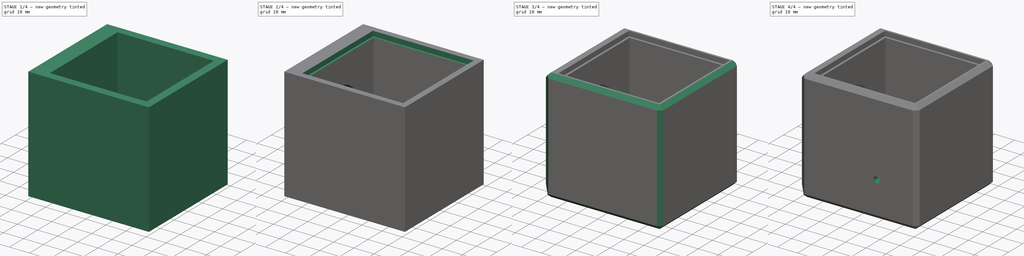
[diagram: build sequence overview — one tinted view per stage of 4, left to right]
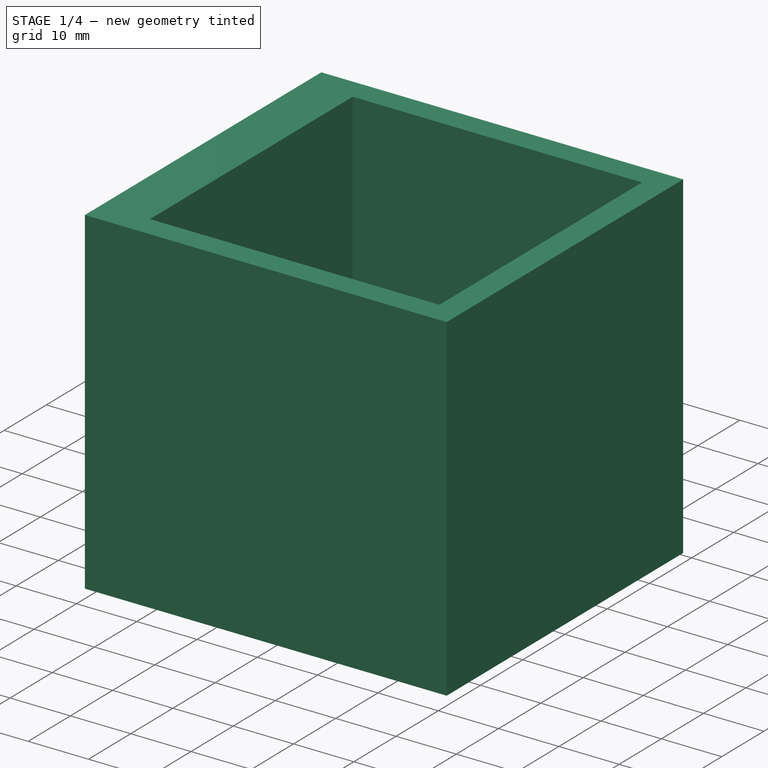
[diagram: stage 1 of 4 — iso view after this stage's code; geometry added in this stage tinted green]
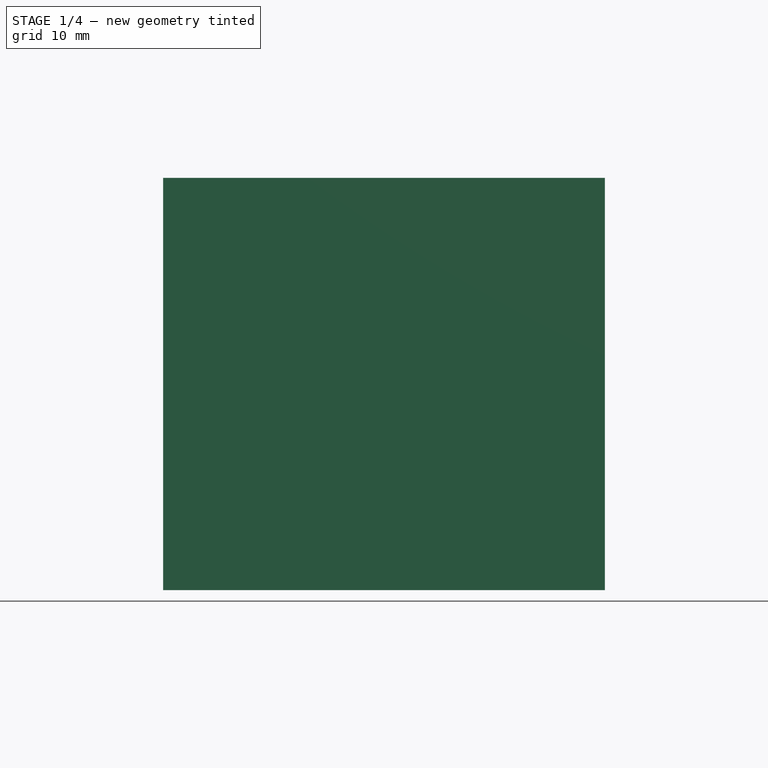
[diagram: stage 1 of 4 — front view after this stage's code; geometry added in this stage tinted green]
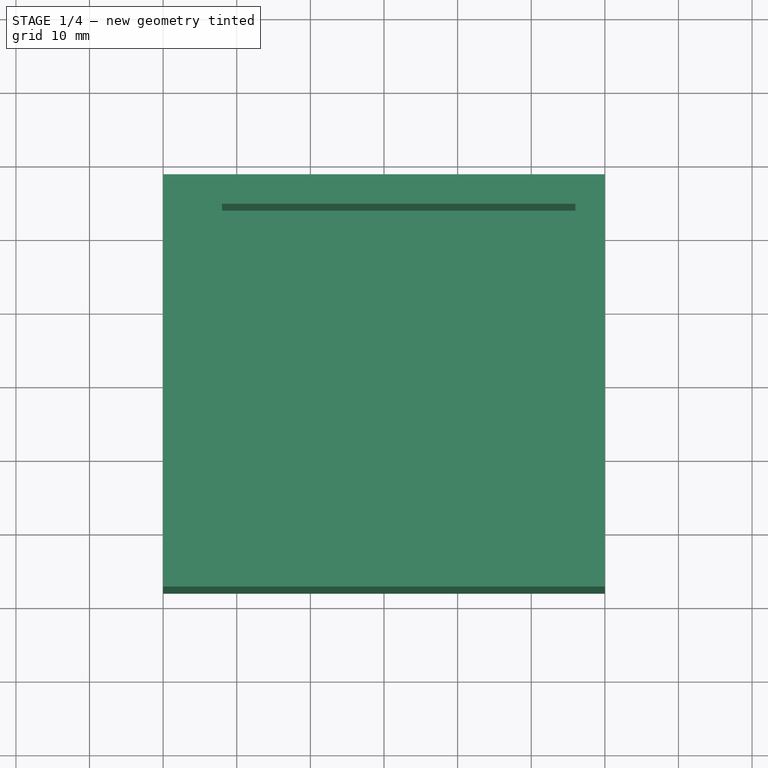
[diagram: stage 1 of 4 — top view after this stage's code; geometry added in this stage tinted green]
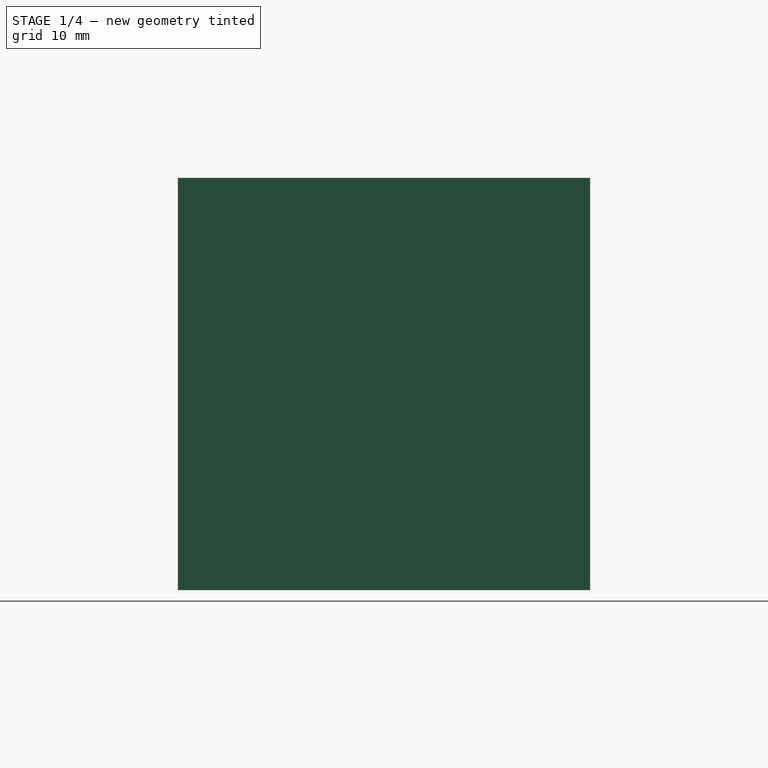
[diagram: stage 1 of 4 — right view after this stage's code; geometry added in this stage tinted green]
FCSTD DOCUMENT  (FreeCAD 1.0R39109 (Git))
Label: Waist Viewer Standard
License: All rights reserved
LicenseURL: https://en.wikipedia.org/wiki/All_rights_reserved
objects: Sketcher::SketchObject×7, PartDesign::Pocket×5, PartDesign::Chamfer×2, PartDesign::Pad×1, PartDesign::Plane×1, PartDesign::Line×1, PartDesign::AdditiveHelix×1, PartDesign::Body×1
note: 44 computed .brp shape members not serialized (recipe doc carries the construction recipe); baked Part::Feature solids carry a one-line shape summary decoded from their .brp

FEATURE [Sketcher::SketchObject] Sketch
  ArcFitTolerance = 1e-06
  AttachmentSupport = -> [XY_Plane]
  FullyConstrained = true
  MakeInternals = false
  MapMode = 5
  sketch-geometry (5):
    g0: LineSegment StartX=-30 StartY=-28 StartZ=0 EndX=30 EndY=-28 EndZ=0
    g1: LineSegment StartX=30 StartY=-28 StartZ=0 EndX=30 EndY=28 EndZ=0
    g2: LineSegment StartX=30 StartY=28 StartZ=0 EndX=-30 EndY=28 EndZ=0
    g3: LineSegment StartX=-30 StartY=28 StartZ=0 EndX=-30 EndY=-28 EndZ=0
    g4: GeomPoint [constr] X=0 Y=0 Z=0
  constraints (12):
    c: Coincident(g0,g1)
    c: Coincident(g1,g2)
    c: Coincident(g2,g3)
    c: Coincident(g3,g0)
    c: Horizontal(g0)
    c: Horizontal(g2)
    c: Vertical(g1)
    c: Vertical(g3)
    c: Symmetric(g2,g0,g4)
    c: Distance(g1,g3) = 60
    c: Distance(g0,g2) = 56
    c: Coincident(g4,g-1)
FEATURE [PartDesign::Pad] Pad
  Direction = (0,0,1)
  Length = 56
  Length2 = 10
  Profile = -> Sketch
  ReferenceAxis = -> Sketch [N_Axis]
  Refine = true
  Suppressed = false
  Type = 0
FEATURE [Sketcher::SketchObject] Sketch001
  ArcFitTolerance = 1e-06
  AttachmentSupport = -> [Pad]
  ExternalGeometry = -> [Pad]
  FullyConstrained = true
  MakeInternals = false
  MapMode = 5
  Placement = pos=(0,0,56) rot=(0,0,1;0rad)
  sketch-geometry (5):
    g0: LineSegment StartX=-22 StartY=24 StartZ=0 EndX=-22 EndY=-24 EndZ=0
    g1: LineSegment StartX=-22 StartY=-24 StartZ=0 EndX=26 EndY=-24 EndZ=0
    g2: LineSegment StartX=26 StartY=-24 StartZ=0 EndX=26 EndY=24 EndZ=0
    g3: LineSegment StartX=26 StartY=24 StartZ=0 EndX=-22 EndY=24 EndZ=0
    g4: GeomPoint [constr] X=2 Y=0 Z=0
  constraints (13):
    c: Coincident(g0,g1)
    c: Coincident(g1,g2)
    c: Coincident(g2,g3)
    c: Coincident(g3,g0)
    c: Vertical(g0)
    c: Vertical(g2)
    c: Horizontal(g1)
    c: Horizontal(g3)
    c: Symmetric(g2,g0,g4)
    c: PointOnObject(g4,g-1)
    c: DistanceX(g3,g3) = 48
    c: DistanceY(g2,g2) = 48
    c: Distance(g-3,g2) = 4
FEATURE [PartDesign::Pocket] Pocket
  BaseFeature = -> Pad
  Direction = (0,0,-1)
  Length = 53
  Length2 = 5
  Profile = -> Sketch001
  ReferenceAxis = -> Sketch001 [N_Axis]
  Refine = true
  Suppressed = false
  Type = 0
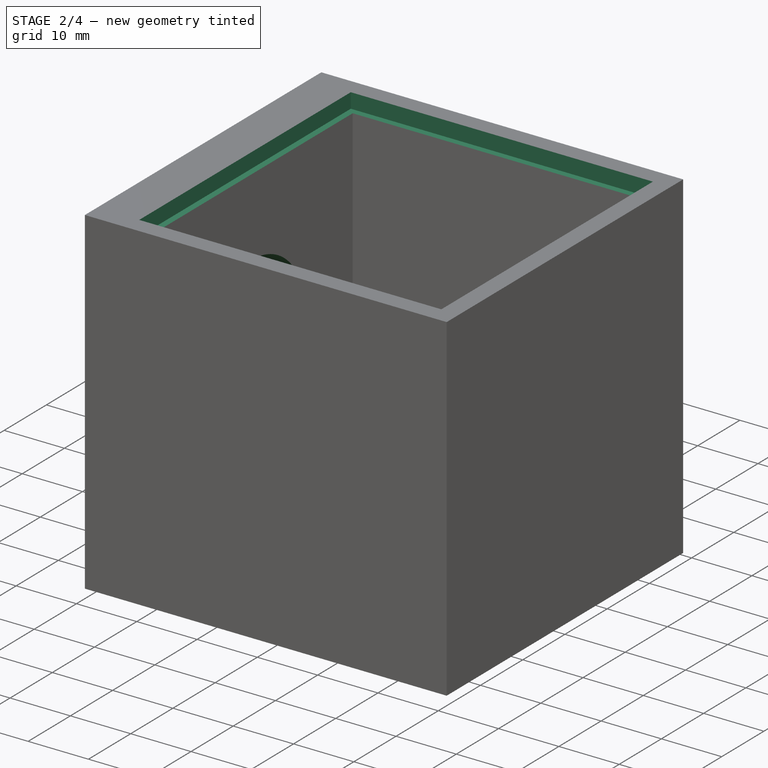
[diagram: stage 2 of 4 — iso view after this stage's code; geometry added in this stage tinted green]
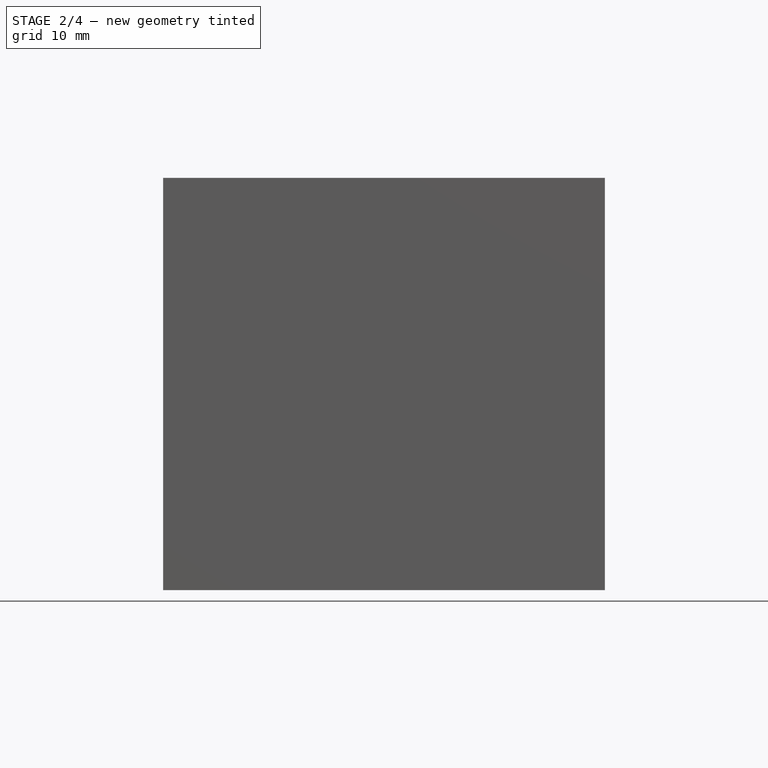
[diagram: stage 2 of 4 — front view after this stage's code; geometry added in this stage tinted green]
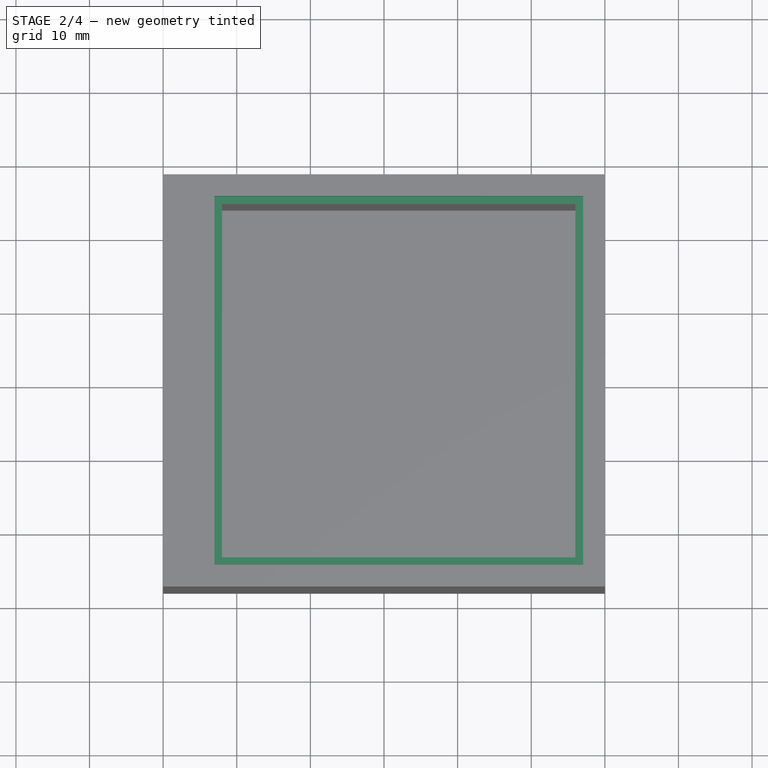
[diagram: stage 2 of 4 — top view after this stage's code; geometry added in this stage tinted green]
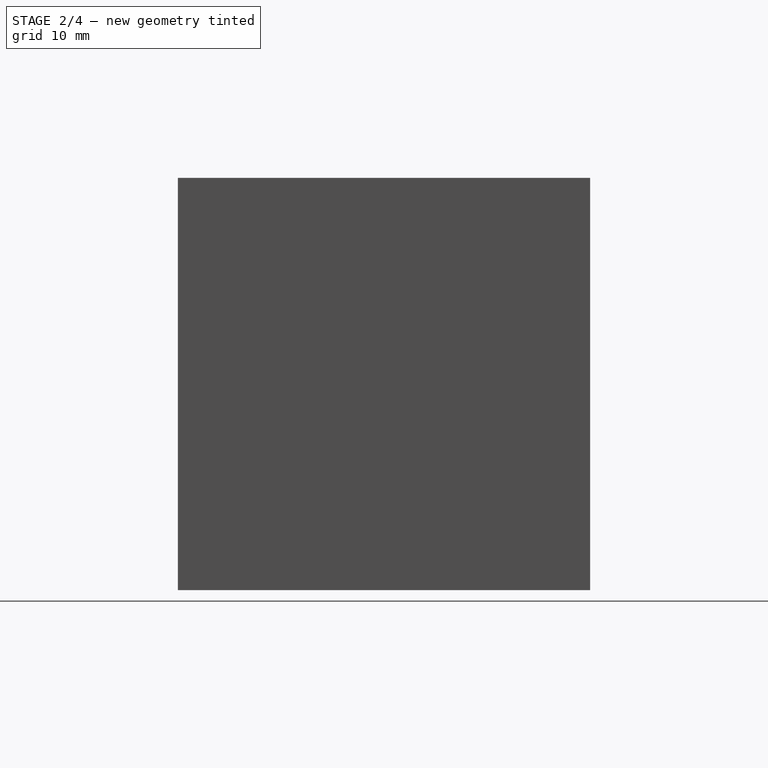
[diagram: stage 2 of 4 — right view after this stage's code; geometry added in this stage tinted green]
FEATURE [Sketcher::SketchObject] Sketch002
  ArcFitTolerance = 1e-06
  AttachmentSupport = -> [Pocket]
  FullyConstrained = true
  MakeInternals = false
  MapMode = 5
  Placement = pos=(-30,0,0) rot=(0.57735,-0.57735,-0.57735;2.0944rad)
  sketch-geometry (1):
    g0: Circle CenterX=0 CenterY=28 CenterZ=0 NormalX=0 NormalY=0 NormalZ=1 AngleXU=0 Radius=12.7
  constraints (3):
    c: Diameter(g0) = 25.4
    c: PointOnObject(g0,g-2)
    c: DistanceY(g-1,g0) = 28
FEATURE [PartDesign::Pocket] Pocket001
  BaseFeature = -> Pocket
  Direction = (1,0,0)
  Length = 0
  Length2 = 5
  Profile = -> Sketch002
  ReferenceAxis = -> Sketch002 [N_Axis]
  Refine = true
  Suppressed = false
  Type = 3
  UpToFace = -> Pocket [Face7]
FEATURE [Sketcher::SketchObject] Sketch003
  ArcFitTolerance = 1e-06
  AttachmentSupport = -> [Pocket001]
  ExternalGeometry = -> [Pocket001]
  FullyConstrained = true
  MakeInternals = false
  MapMode = 5
  Placement = pos=(0,0,56) rot=(0,0,1;0rad)
  sketch-geometry (5):
    g0: LineSegment StartX=-23.05 StartY=-25.05 StartZ=0 EndX=27.05 EndY=-25.05 EndZ=0
    g1: LineSegment StartX=27.05 StartY=-25.05 StartZ=0 EndX=27.05 EndY=25.05 EndZ=0
    g2: LineSegment StartX=27.05 StartY=25.05 StartZ=0 EndX=-23.05 EndY=25.05 EndZ=0
    g3: LineSegment StartX=-23.05 StartY=25.05 StartZ=0 EndX=-23.05 EndY=-25.05 EndZ=0
    g4: GeomPoint [constr] X=2 Y=-2.8e-15 Z=0
  constraints (13):
    c: Coincident(g0,g1)
    c: Coincident(g1,g2)
    c: Coincident(g2,g3)
    c: Coincident(g3,g0)
    c: Horizontal(g0)
    c: Horizontal(g2)
    c: Vertical(g1)
    c: Vertical(g3)
    c: Symmetric(g2,g0,g4)
    c: Distance(g1,g3) = 50.1
    c: Distance(g0,g2) = 50.1
    c: Distance(g-3,g2) = 1.05
    c: Distance(g1,g-5) = 1.05
FEATURE [PartDesign::Pocket] Pocket002
  BaseFeature = -> Pocket001
  Direction = (0,0,-1)
  Length = 2.474
  Length2 = 5
  Profile = -> Sketch003
  ReferenceAxis = -> Sketch003 [N_Axis]
  Refine = true
  Suppressed = false
  Type = 0
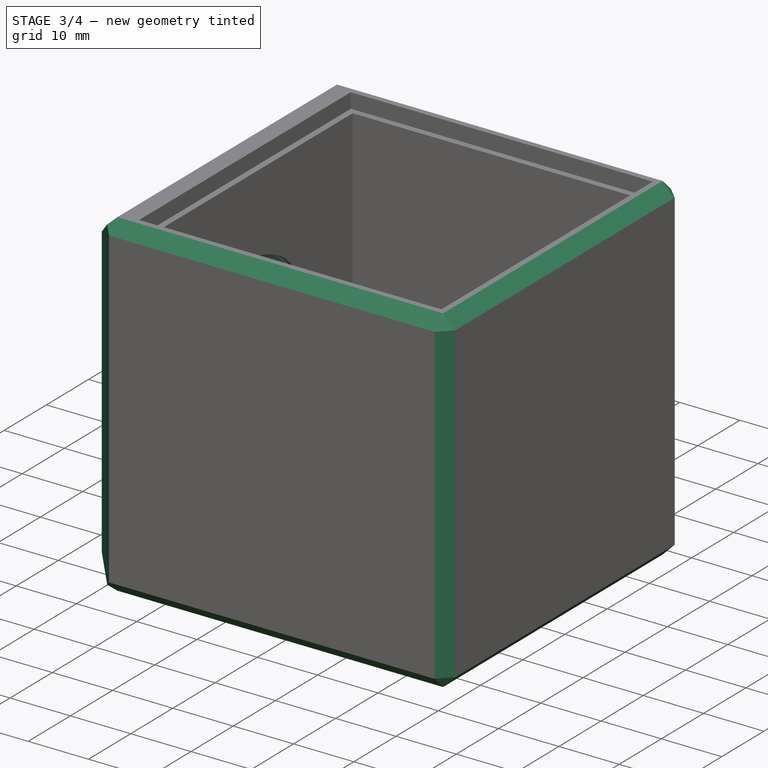
[diagram: stage 3 of 4 — iso view after this stage's code; geometry added in this stage tinted green]
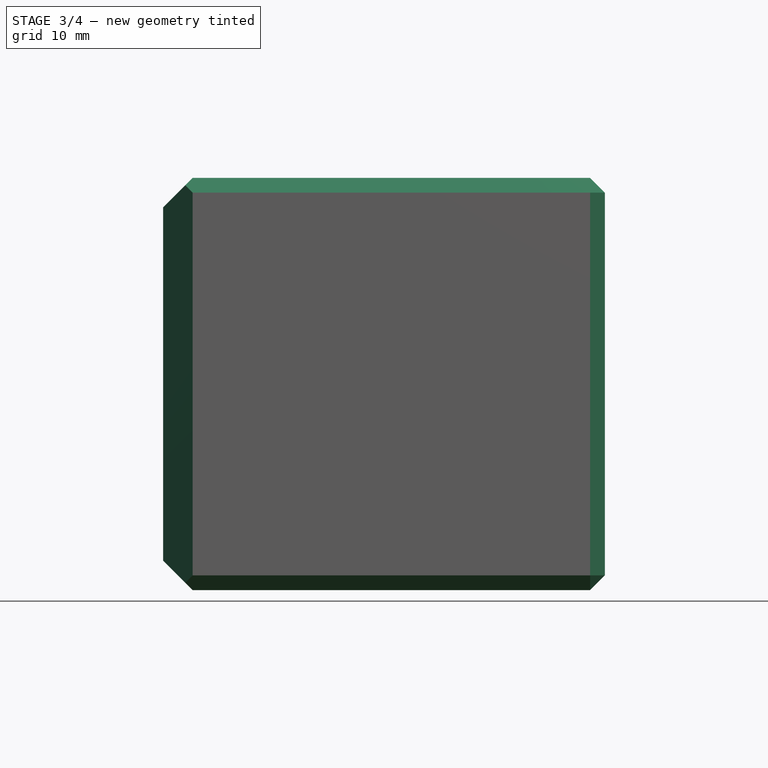
[diagram: stage 3 of 4 — front view after this stage's code; geometry added in this stage tinted green]
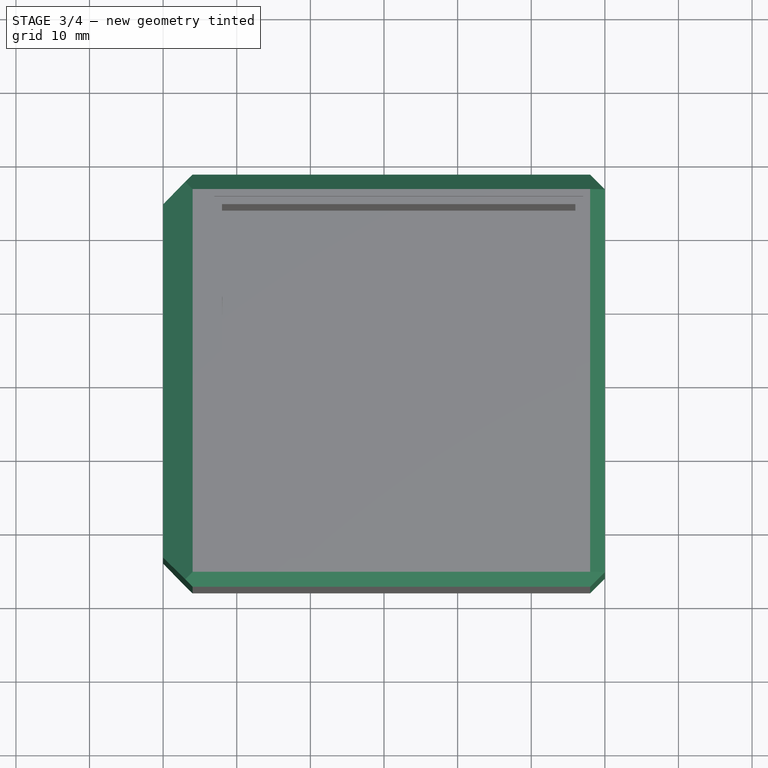
[diagram: stage 3 of 4 — top view after this stage's code; geometry added in this stage tinted green]
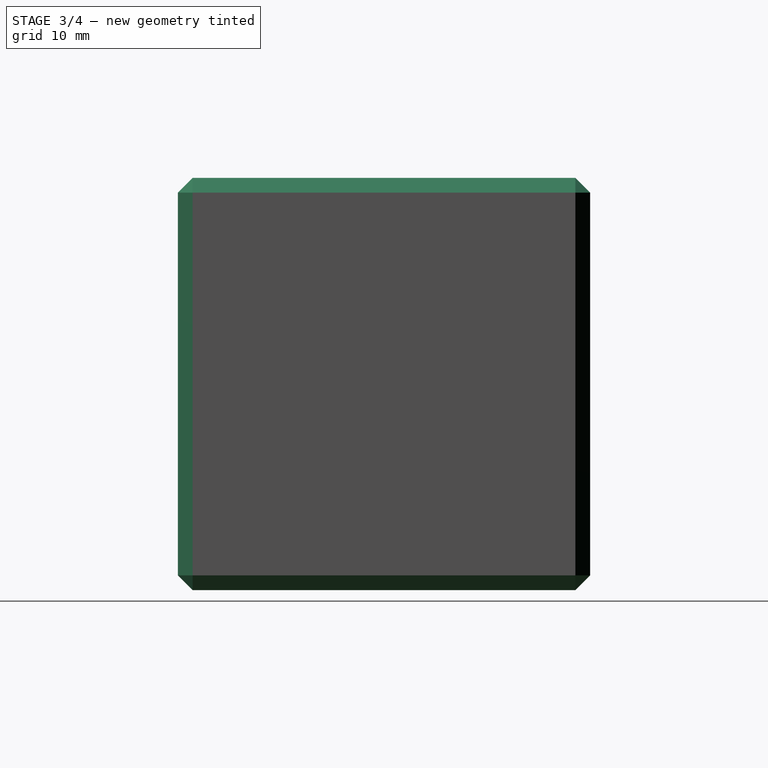
[diagram: stage 3 of 4 — right view after this stage's code; geometry added in this stage tinted green]
FEATURE [PartDesign::Plane] DatumPlane
  AttachmentOffset = pos=(0,0,-28) rot=(0,0,1;0rad)
  AttachmentSupport = -> [Pocket002]
  Length = 71.5931
  MapMode = 5
  Placement = pos=(0,0,28) rot=(1,0,0;3.14159rad)
  ResizeMode = 0
  Width = 67.5931
FEATURE [Sketcher::SketchObject] Sketch004  label="Thread_Profile"
  ArcFitTolerance = 1e-06
  AttachmentSupport = -> [DatumPlane]
  ExternalGeometry = -> [Pocket002]
  FullyConstrained = true
  MakeInternals = false
  MapMode = 5
  Placement = pos=(0,0,28) rot=(1,0,0;3.14159rad)
  sketch-geometry (3):
    g0: LineSegment StartX=-30 StartY=12.7 StartZ=0 EndX=-29.7252 EndY=12.224 EndZ=0
    g1: LineSegment StartX=-29.7252 StartY=12.224 StartZ=0 EndX=-29.4504 EndY=12.7 EndZ=0
    g2: LineSegment StartX=-30 StartY=12.7 StartZ=0 EndX=-29.4504 EndY=12.7 EndZ=0
  constraints (8):
    c: Coincident(g0,g-3)
    c: Angle(g0,g-3) = 1.0472
    c: Distance(g0,g-3) = 0.476
    c: Angle(g-1,g1) = 1.0472
    c: Coincident(g1,g0)
    c: PointOnObject(g1,g-3)
    c: Coincident(g2,g0)
    c: Coincident(g2,g1)
FEATURE [PartDesign::Line] DatumLine  label="Thread_Axi"
  AttacherType = Attacher::AttachEngineLine
  AttachmentSupport = -> [DatumPlane]
  Length = 20
  MapMode = 16
  Placement = pos=(0,0,28) rot=(0.57735,-0.57735,0.57735;4.18879rad)
  ResizeMode = 0
FEATURE [PartDesign::AdditiveHelix] AdditiveHelix
  Angle = 0
  Axis = (1,0,0)
  Base = (0,0,28)
  BaseFeature = -> Pocket002
  Growth = 0
  HasBeenEdited = true
  Height = 7.5
  LeftHanded = false
  Mode = 0
  Outside = false
  Pitch = 0.794
  Profile = -> Sketch004
  ReferenceAxis = -> DatumLine
  Refine = true
  Suppressed = false
  Tolerance = 0.1
  Turns = 9.44584
FEATURE [PartDesign::Chamfer] Chamfer
  Angle = 45
  Base = -> AdditiveHelix [Edge38,Edge40,Edge34,Edge39]
  BaseFeature = -> AdditiveHelix
  ChamferType = 0
  FlipDirection = false
  Refine = true
  Size = 4
  Size2 = 1
  SupportTransform = false
  Suppressed = false
  UseAllEdges = false
FEATURE [PartDesign::Chamfer] Chamfer001
  Angle = 45
  Base = -> Chamfer [Edge1,Edge7,Edge6,Edge3,Edge11,Edge4,Edge14,Edge12]
  BaseFeature = -> Chamfer
  ChamferType = 0
  FlipDirection = false
  Refine = true
  Size = 2
  Size2 = 1
  SupportTransform = false
  Suppressed = false
  UseAllEdges = false
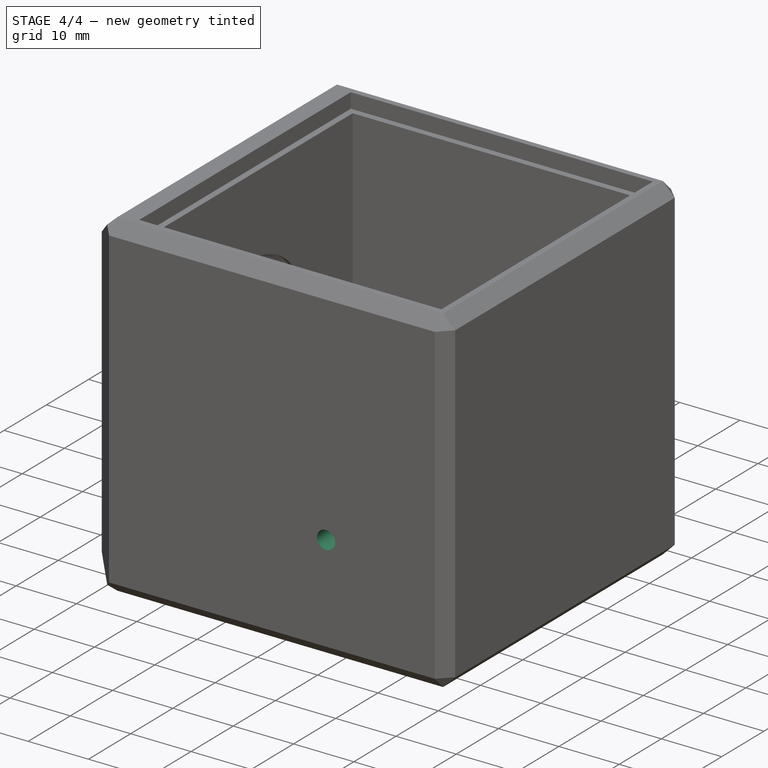
[diagram: stage 4 of 4 — iso view after this stage's code; geometry added in this stage tinted green]
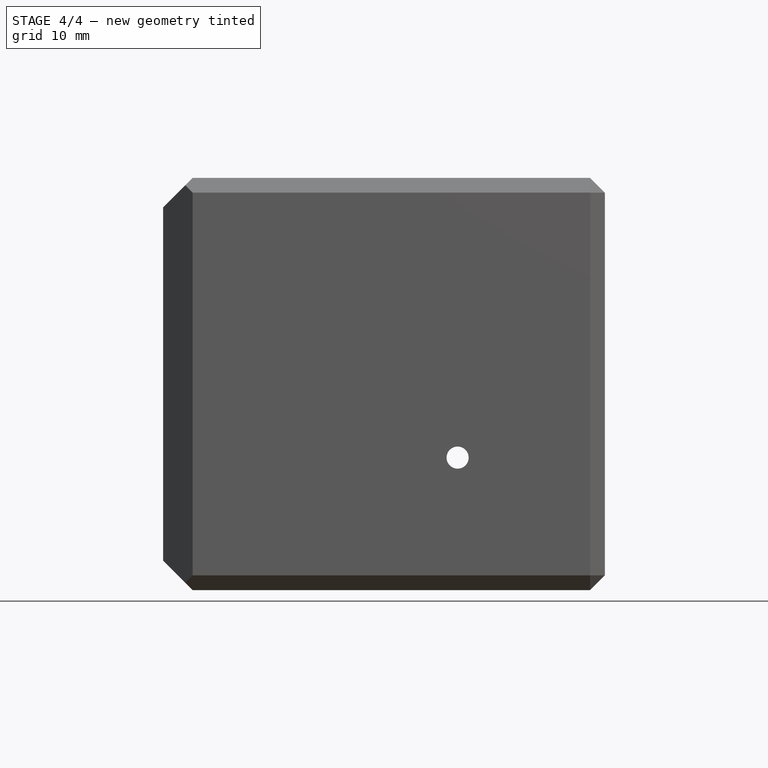
[diagram: stage 4 of 4 — front view after this stage's code; geometry added in this stage tinted green]
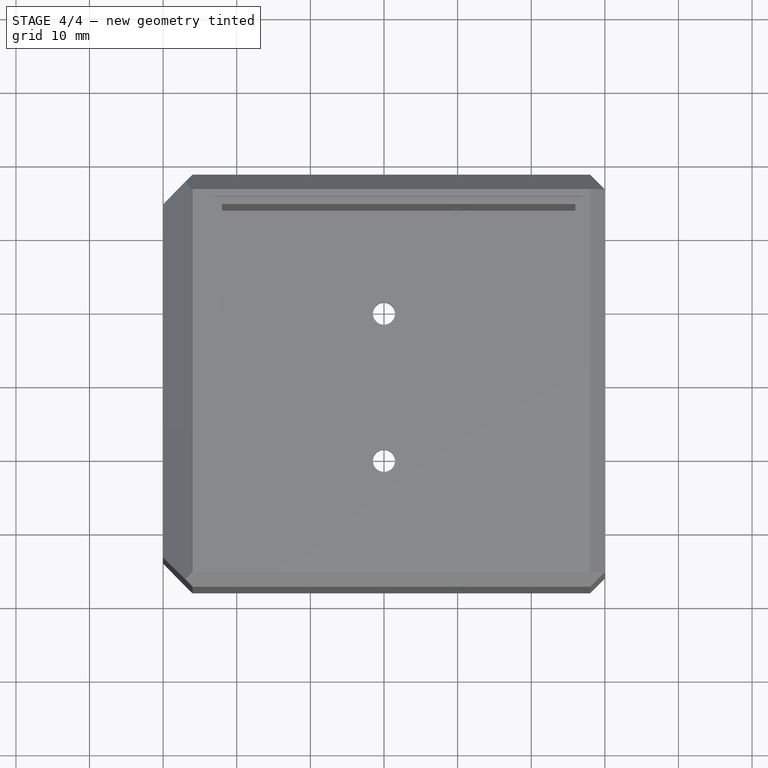
[diagram: stage 4 of 4 — top view after this stage's code; geometry added in this stage tinted green]
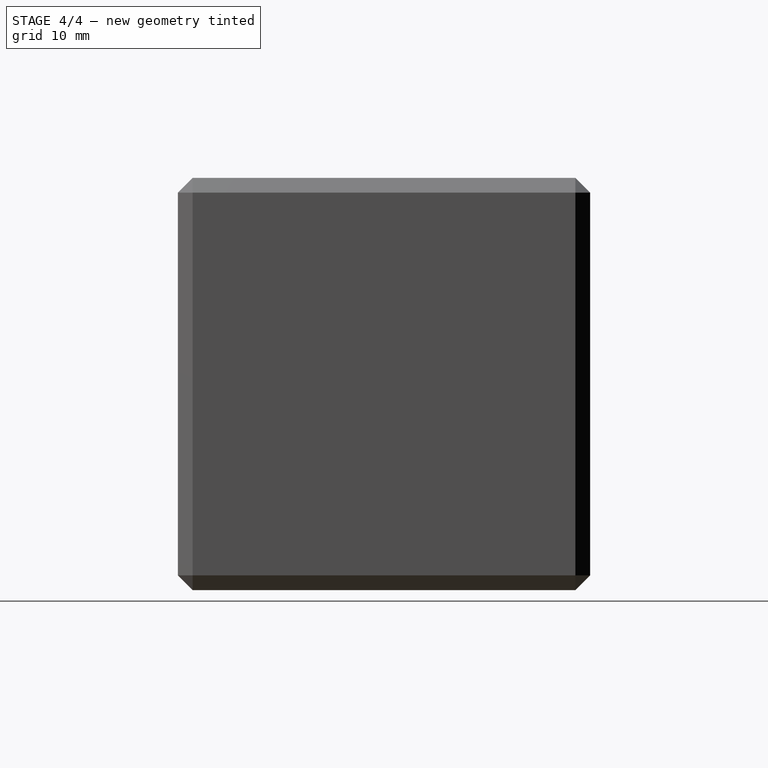
[diagram: stage 4 of 4 — right view after this stage's code; geometry added in this stage tinted green]
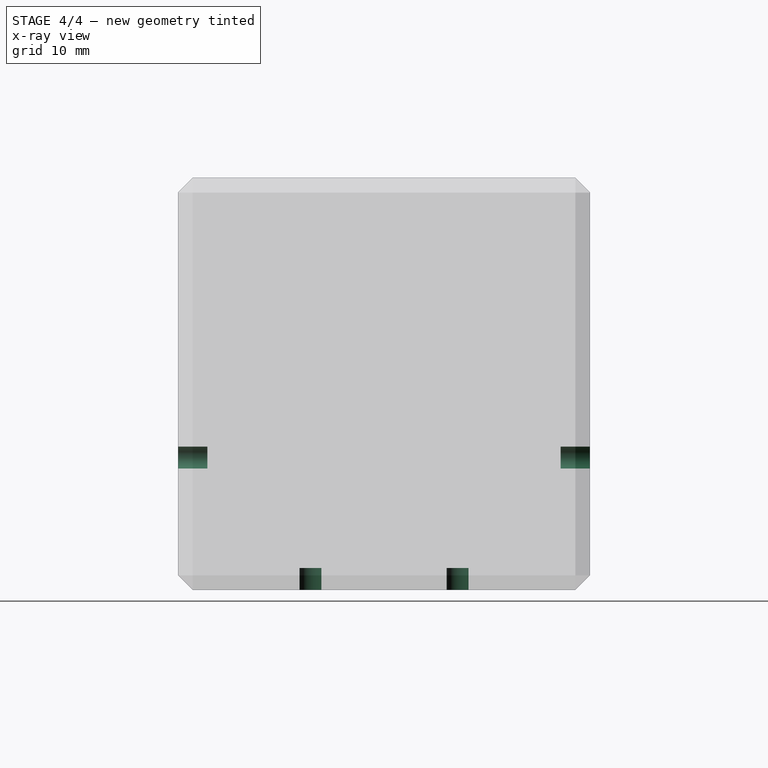
[diagram: stage 4 of 4 — x-ray composite at the right view; earlier geometry ghosted, this stage's added geometry solid]
FEATURE [Sketcher::SketchObject] Sketch005
  ArcFitTolerance = 1e-06
  AttachmentSupport = -> [Chamfer001]
  FullyConstrained = true
  MakeInternals = false
  MapMode = 5
  Placement = pos=(0,0,0) rot=(1,0,0;3.14159rad)
  sketch-geometry (2):
    g0: Circle CenterX=0 CenterY=10 CenterZ=0 NormalX=0 NormalY=0 NormalZ=1 AngleXU=0 Radius=1.5
    g1: Circle CenterX=0 CenterY=-10 CenterZ=0 NormalX=0 NormalY=0 NormalZ=1 AngleXU=0 Radius=1.5
  constraints (6):
    c: PointOnObject(g0,g-2)
    c: PointOnObject(g1,g-2)
    c: Diameter(g0) = 3
    c: Diameter(g1) = 3
    c: Distance(g1,g-1) = 10
    c: DistanceY(g-1,g0) = 10
FEATURE [PartDesign::Pocket] Pocket003
  BaseFeature = -> Chamfer001
  Direction = (0,0,1)
  Length = 5
  Length2 = 5
  Profile = -> Sketch005
  ReferenceAxis = -> Sketch005 [N_Axis]
  Refine = true
  Suppressed = false
  Type = 1
FEATURE [Sketcher::SketchObject] Sketch006
  ArcFitTolerance = 1e-06
  AttachmentSupport = -> [Pocket003]
  ExternalGeometry = -> [Pocket003,DatumPlane]
  FullyConstrained = true
  MakeInternals = false
  MapMode = 5
  Placement = pos=(0,-28,0) rot=(1,0,0;1.5708rad)
  sketch-geometry (2):
    g0: Circle CenterX=10 CenterY=18 CenterZ=0 NormalX=0 NormalY=0 NormalZ=1 AngleXU=0 Radius=1.5
    g1: GeomPoint [constr] X=0 Y=28 Z=0
  constraints (4):
    c: Diameter(g0) = 3
    c: Distance(g0,g-2) = 10
    c: Symmetric(g-4,g-4,g1)
    c: Distance(g0,g-4) = 10
FEATURE [PartDesign::Pocket] Pocket004
  BaseFeature = -> Pocket003
  Direction = (0,1,-2e-16)
  Length = 5
  Length2 = 5
  Profile = -> Sketch006
  ReferenceAxis = -> Sketch006 [N_Axis]
  Refine = true
  Suppressed = false
  Type = 1
FEATURE [PartDesign::Body] Body
  AllowCompound = false
  Group = -> [Sketch,Pad,Sketch001,Pocket,Sketch002,Pocket001,Sketch003,Pocket002,DatumPlane,Sketch004,DatumLine,AdditiveHelix,Chamfer,Chamfer001,Sketch005,Pocket003,Sketch006,Pocket004]
  Origin = -> Origin
  Tip = -> Pocket004
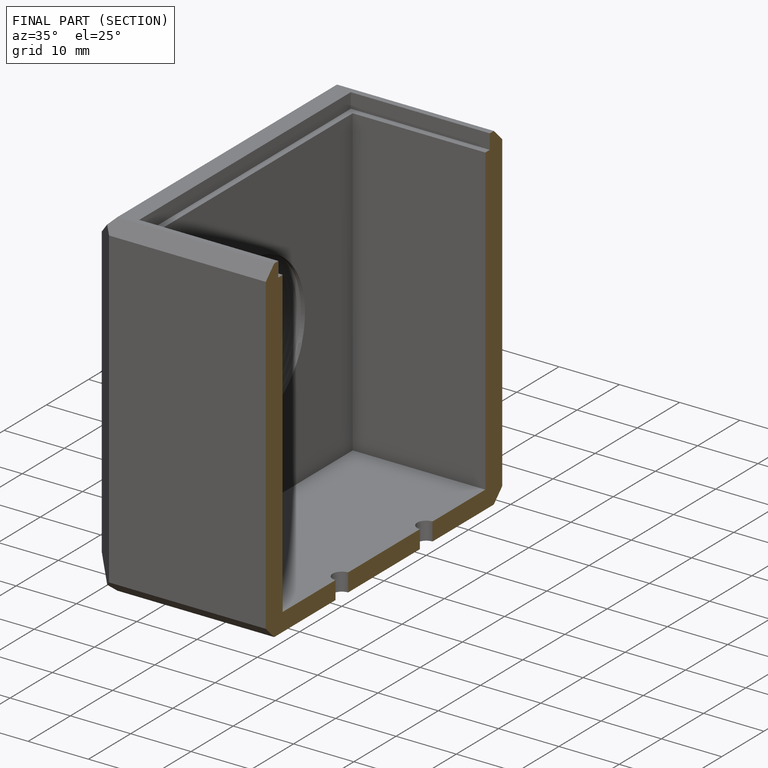
[diagram: finished part — half-section view (interior)]
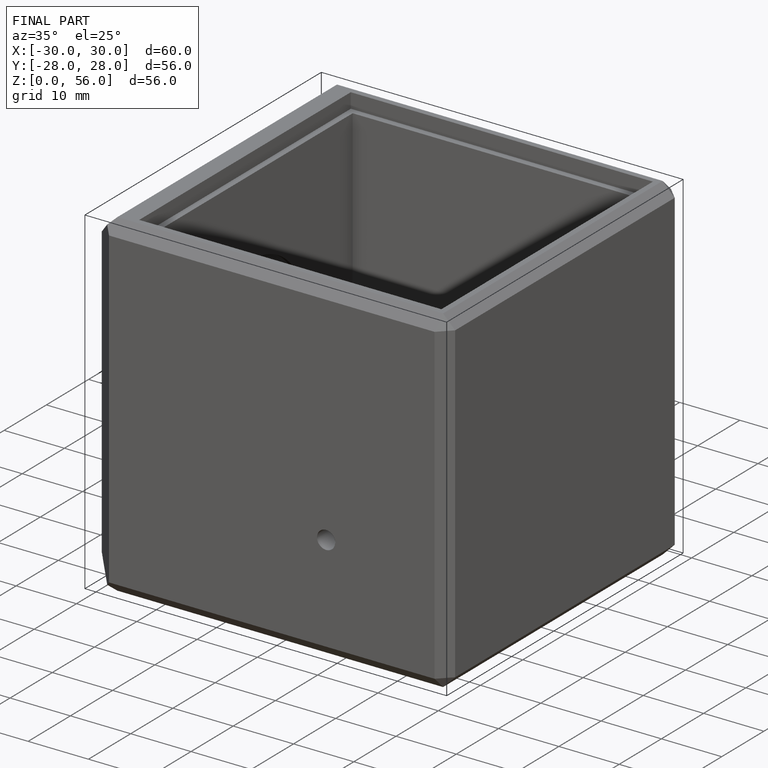
[diagram: finished part — iso view with bounding-box wireframe]
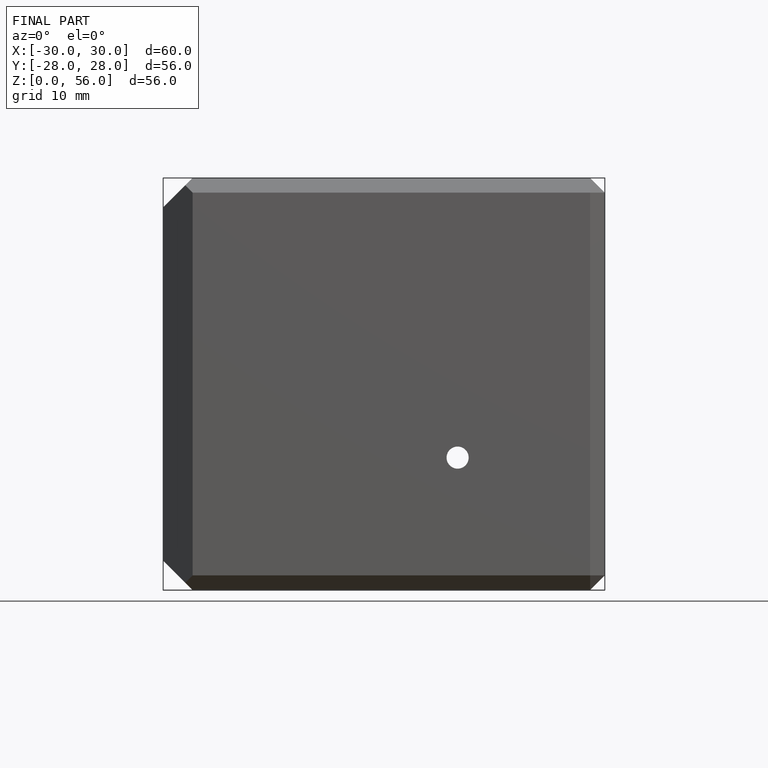
[diagram: finished part — front view with bounding-box wireframe]
